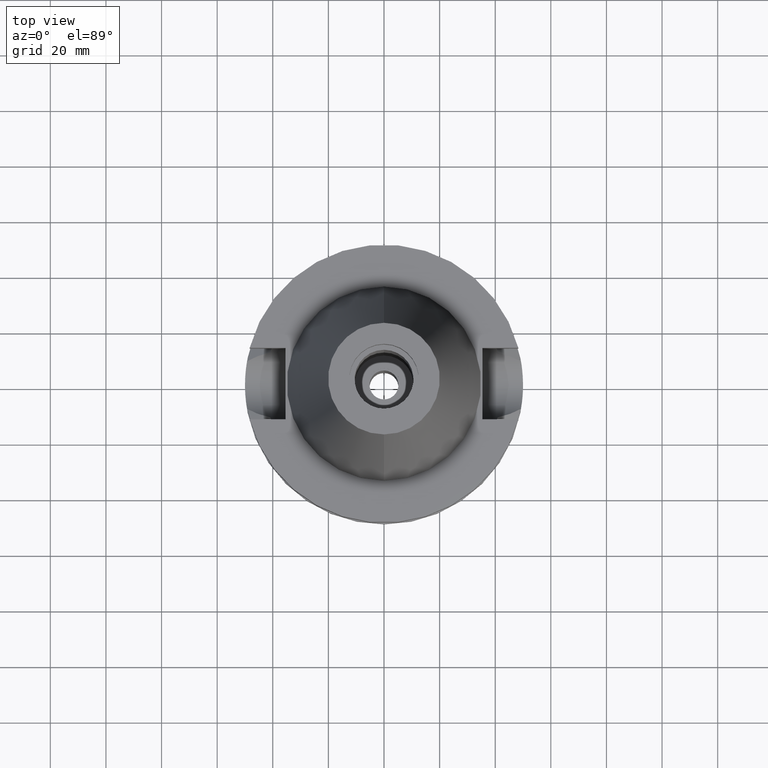
[diagram: clean part render]
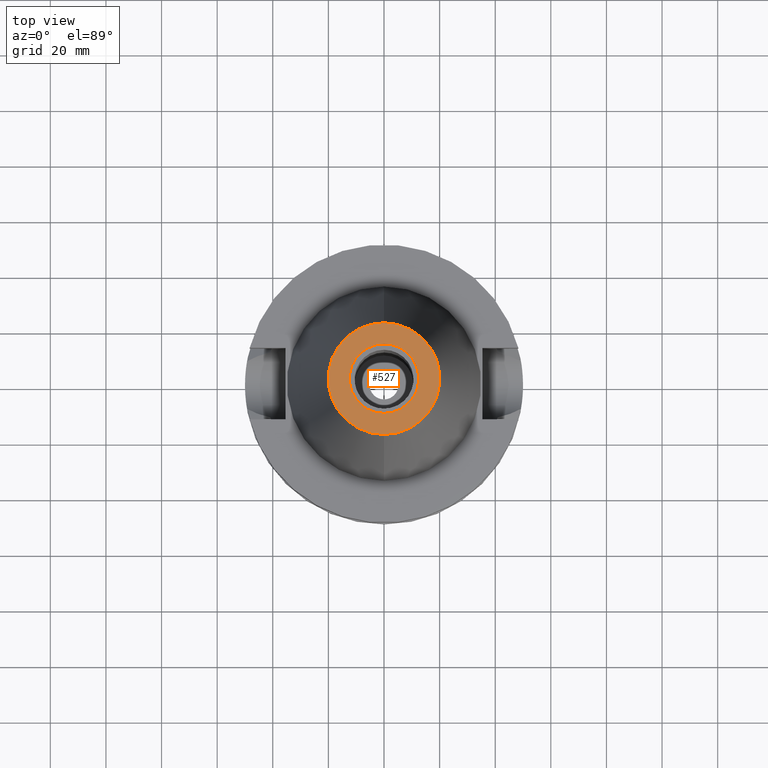
[diagram: same view with one face highlighted and labeled with its STEP entity id]
A machine part, top view. The second image highlights one B-rep face of the part: STEP entity #527.
In plain terms, the highlighted planar face has unit normal (0, 0, -1).
Its self-contained STEP definition (entity closure, byte-faithful):
#29 = AXIS2_PLACEMENT_3D ( 'NONE', #1382, #903, #1355 ) ;
#32 = CIRCLE ( 'NONE', #2283, 12.50000000000000000 ) ;
#246 = DIRECTION ( 'NONE',  ( 0.0000000000000000000, 1.000000000000000000, 0.0000000000000000000 ) ) ;
#273 = CARTESIAN_POINT ( 'NONE',  ( 0.0000000000000000000, -20.07942971896000017, 101.7999999999999972 ) ) ;
#405 = DIRECTION ( 'NONE',  ( 0.0000000000000000000, 0.0000000000000000000, 1.000000000000000000 ) ) ;
#406 = CARTESIAN_POINT ( 'NONE',  ( 0.0000000000000000000, 2.471337240678999545E-14, 101.7999999999999972 ) ) ;
#527 = ADVANCED_FACE ( 'NONE', ( #1893, #1176 ), #1654, .F. ) ;
#535 = DIRECTION ( 'NONE',  ( 0.0000000000000000000, 0.0000000000000000000, 1.000000000000000000 ) ) ;
#622 = DIRECTION ( 'NONE',  ( 0.0000000000000000000, -1.000000000000000000, 0.0000000000000000000 ) ) ;
#654 = CARTESIAN_POINT ( 'NONE',  ( 0.0000000000000000000, -12.50000000000000000, 101.7999999999999972 ) ) ;
#679 = ORIENTED_EDGE ( 'NONE', *, *, #1576, .F. ) ;
#711 = CIRCLE ( 'NONE', #2473, 20.07942971896000017 ) ;
#782 = CARTESIAN_POINT ( 'NONE',  ( 0.0000000000000000000, 20.07942971896000017, 101.7999999999999972 ) ) ;
#806 = AXIS2_PLACEMENT_3D ( 'NONE', #1844, #405, #622 ) ;
#903 = DIRECTION ( 'NONE',  ( 0.0000000000000000000, 0.0000000000000000000, -1.000000000000000000 ) ) ;
#1121 = DIRECTION ( 'NONE',  ( 0.0000000000000000000, 0.0000000000000000000, -1.000000000000000000 ) ) ;
#1138 = EDGE_CURVE ( 'NONE', #2466, #2495, #2667, .T. ) ;
#1158 = CIRCLE ( 'NONE', #806, 12.50000000000000000 ) ;
#1176 = FACE_BOUND ( 'NONE', #3036, .T. ) ;
#1230 = EDGE_LOOP ( 'NONE', ( #1598, #1483 ) ) ;
#1355 = DIRECTION ( 'NONE',  ( 0.0000000000000000000, 1.000000000000000000, 0.0000000000000000000 ) ) ;
#1382 = CARTESIAN_POINT ( 'NONE',  ( 0.0000000000000000000, 1.847992019912999597E-14, 101.7999999999999972 ) ) ;
#1483 = ORIENTED_EDGE ( 'NONE', *, *, #2436, .F. ) ;
#1545 = CARTESIAN_POINT ( 'NONE',  ( 0.0000000000000000000, 12.50000000000000000, 101.7999999999999972 ) ) ;
#1576 = EDGE_CURVE ( 'NONE', #2257, #3108, #1158, .T. ) ;
#1598 = ORIENTED_EDGE ( 'NONE', *, *, #1138, .F. ) ;
#1647 = ORIENTED_EDGE ( 'NONE', *, *, #2422, .F. ) ;
#1654 = PLANE ( 'NONE',  #2604 ) ;
#1844 = CARTESIAN_POINT ( 'NONE',  ( 0.0000000000000000000, 2.601027336708999694E-14, 101.7999999999999972 ) ) ;
#1893 = FACE_OUTER_BOUND ( 'NONE', #1230, .T. ) ;
#1986 = CARTESIAN_POINT ( 'NONE',  ( 0.0000000000000000000, 1.847992019912999597E-14, 101.7999999999999972 ) ) ;
#2228 = DIRECTION ( 'NONE',  ( 0.0000000000000000000, 0.0000000000000000000, -1.000000000000000000 ) ) ;
#2257 = VERTEX_POINT ( 'NONE', #654 ) ;
#2283 = AXIS2_PLACEMENT_3D ( 'NONE', #2941, #535, #246 ) ;
#2314 = DIRECTION ( 'NONE',  ( 0.0000000000000000000, -1.000000000000000000, 0.0000000000000000000 ) ) ;
#2422 = EDGE_CURVE ( 'NONE', #3108, #2257, #32, .T. ) ;
#2436 = EDGE_CURVE ( 'NONE', #2495, #2466, #711, .T. ) ;
#2443 = DIRECTION ( 'NONE',  ( 0.0000000000000000000, -1.000000000000000000, 0.0000000000000000000 ) ) ;
#2466 = VERTEX_POINT ( 'NONE', #782 ) ;
#2473 = AXIS2_PLACEMENT_3D ( 'NONE', #1986, #2228, #2443 ) ;
#2495 = VERTEX_POINT ( 'NONE', #273 ) ;
#2604 = AXIS2_PLACEMENT_3D ( 'NONE', #406, #1121, #2314 ) ;
#2667 = CIRCLE ( 'NONE', #29, 20.07942971896000017 ) ;
#2941 = CARTESIAN_POINT ( 'NONE',  ( 0.0000000000000000000, 2.601027336708999694E-14, 101.7999999999999972 ) ) ;
#3036 = EDGE_LOOP ( 'NONE', ( #1647, #679 ) ) ;
#3108 = VERTEX_POINT ( 'NONE', #1545 ) ;